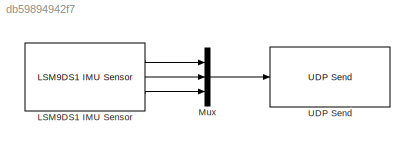
MODEL slx_db59894942f7
KIND model
CONFIG AbsTol = auto
CONFIG EnableMultiTasking = on
CONFIG FixedStep = 0.05
CONFIG MaxStep = auto
CONFIG MinStep = auto
CONFIG RelTol = 1e-3
CONFIG SampleTimeConstraint = Unconstrained
CONFIG Solver = FixedStepAuto
CONFIG SolverName = FixedStepAuto
CONFIG StartTime = 0.0
CONFIG StopTime = inf
BLOCK [Reference] LSM9DS1 IMU Sensor  REF=sensehatlib/LSM9DS1 IMU Sensor
  Ports = [0, 3]
  SourceBlock = sensehatlib/LSM9DS1 IMU Sensor
  SourceProductBaseCode = RASPPI
  SourceType = LSM9DS1 9-DoF IMU Sensor
BLOCK [Mux] Mux
  DisplayOption = bar
  Inputs = 3
  Ports = [3, 1]
BLOCK [Reference] UDP Send  REF=embdlinuxlib/UDP Send
  Ports = [1]
  SourceBlock = embdlinuxlib/UDP Send
  SourceProductBaseCode = SC_BEAGLEBONE_BLUE,RASPPI
  SourceType = UDP Send
LINE LSM9DS1 IMU Sensor:1 -> Mux:1
LINE LSM9DS1 IMU Sensor:2 -> Mux:2
LINE LSM9DS1 IMU Sensor:3 -> Mux:3
LINE Mux:1 -> UDP Send:1
